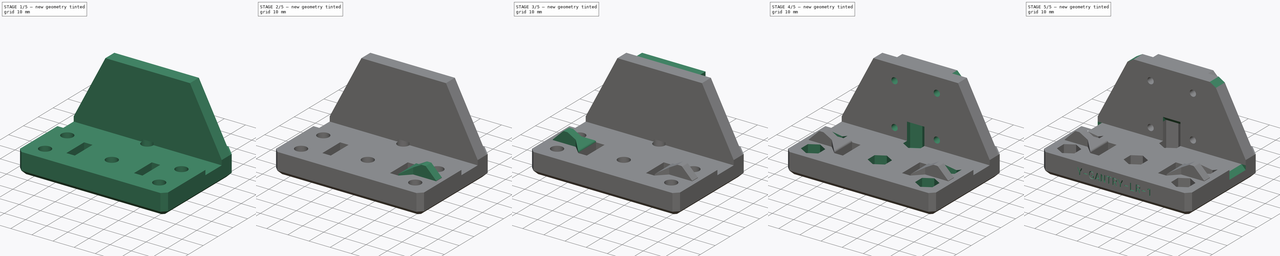
[diagram: build sequence overview — one tinted view per stage of 5, left to right]
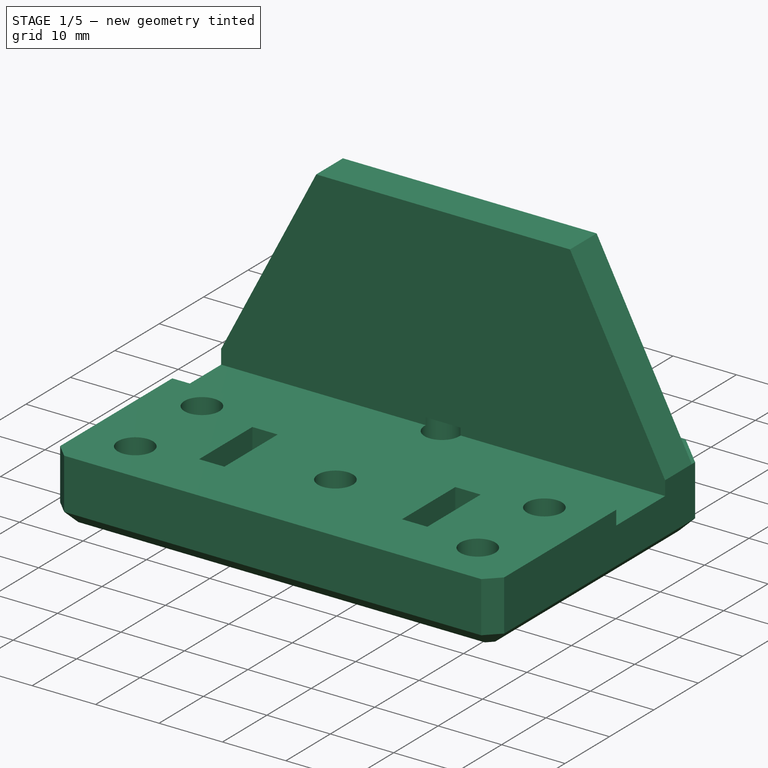
[diagram: stage 1 of 5 — iso view after this stage's code; geometry added in this stage tinted green]
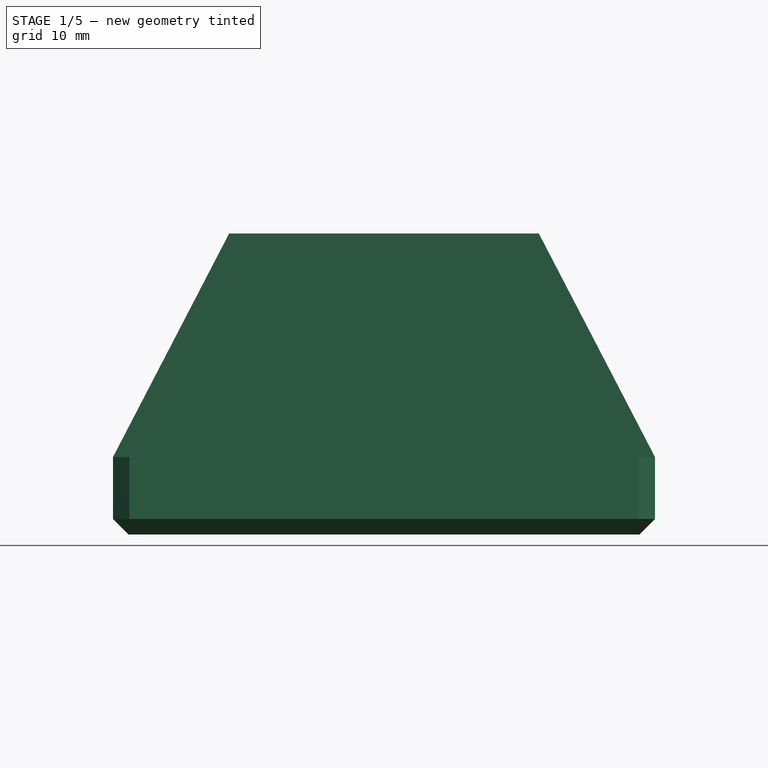
[diagram: stage 1 of 5 — front view after this stage's code; geometry added in this stage tinted green]
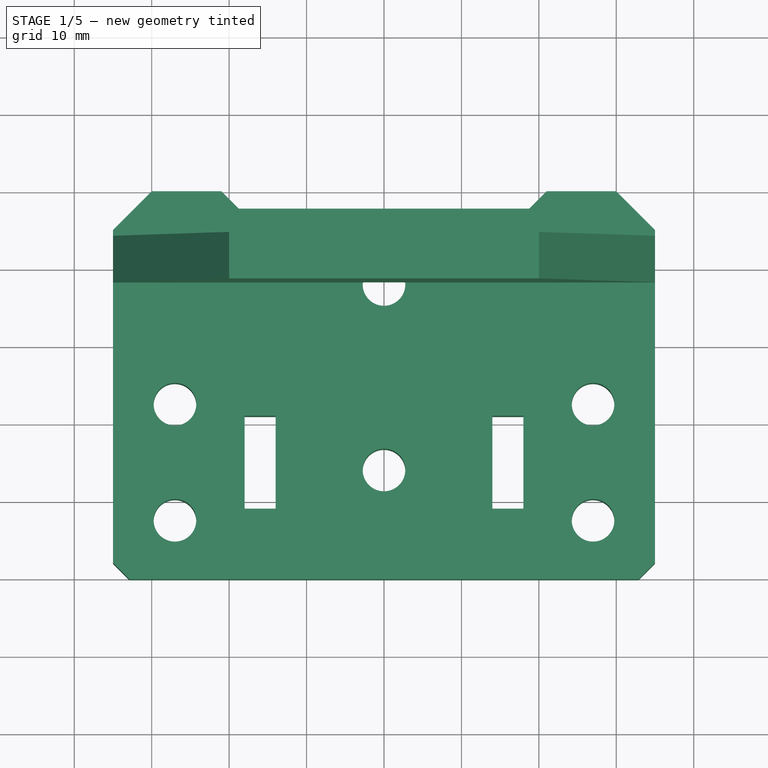
[diagram: stage 1 of 5 — top view after this stage's code; geometry added in this stage tinted green]
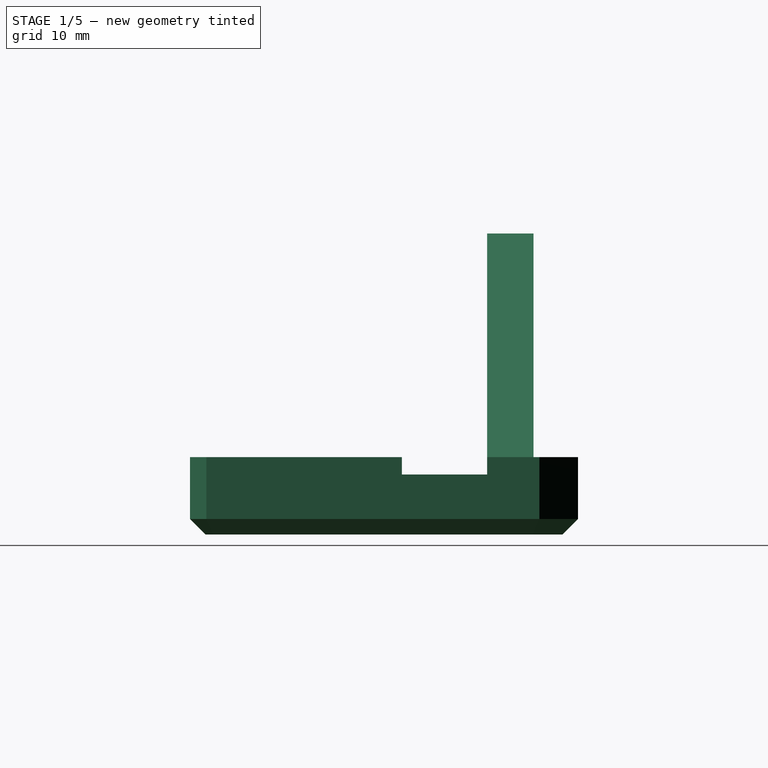
[diagram: stage 1 of 5 — right view after this stage's code; geometry added in this stage tinted green]
FCSTD DOCUMENT  (FreeCAD 0.20R29177 (Git))
Label: y-gantry
License: All rights reserved
LicenseURL: http://en.wikipedia.org/wiki/All_rights_reserved
objects: Sketcher::SketchObject×8, PartDesign::Chamfer×7, PartDesign::Plane×5, PartDesign::Pocket×5, PartDesign::Pad×4, PartDesign::Fillet×2, PartDesign::Mirrored×1, Part::Part2DObjectPython×1, PartDesign::Body×1
note: 52 computed .brp shape members not serialized (recipe doc carries the construction recipe); baked Part::Feature solids carry a one-line shape summary decoded from their .brp

FEATURE [Sketcher::SketchObject] Sketch
  FullyConstrained = true
  MapMode = 5
  Support = -> [XY_Plane]
  sketch-geometry (76):
    g0: LineSegment StartX=-35 StartY=-70 StartZ=0 EndX=35 EndY=-70 EndZ=0
    g1: LineSegment StartX=35 StartY=-70 StartZ=0 EndX=35 EndY=0 EndZ=0
    g2: LineSegment StartX=35 StartY=0 StartZ=0 EndX=-35 EndY=0 EndZ=0
    g3: LineSegment StartX=-35 StartY=0 StartZ=0 EndX=-35 EndY=-70 EndZ=0
    g4: LineSegment StartX=-18.75 StartY=-2.25 StartZ=0 EndX=18.75 EndY=-2.25 EndZ=0
    g5: LineSegment StartX=-18.75 StartY=-2.25 StartZ=0 EndX=-21 EndY=0 EndZ=0
    g6: LineSegment StartX=-21 StartY=0 StartZ=0 EndX=-30 EndY=0 EndZ=0
    g7: LineSegment StartX=-30 StartY=0 StartZ=0 EndX=-35 EndY=-5 EndZ=0
    g8: LineSegment StartX=18.75 StartY=-2.25 StartZ=0 EndX=21 EndY=0 EndZ=0
    g9: LineSegment StartX=21 StartY=0 StartZ=0 EndX=30 EndY=0 EndZ=0
    g10: LineSegment StartX=30 StartY=0 StartZ=0 EndX=35 EndY=-5 EndZ=0
    g11: LineSegment StartX=-35 StartY=-5 StartZ=0 EndX=-35 EndY=-48 EndZ=0
    g12: LineSegment StartX=-35 StartY=-48 StartZ=0 EndX=-32.8787 EndY=-50.1213 EndZ=0
    g13: LineSegment StartX=35 StartY=-5 StartZ=0 EndX=35 EndY=-48 EndZ=0
    g14: LineSegment StartX=35 StartY=-48 StartZ=0 EndX=32.8787 EndY=-50.1213 EndZ=0
    g15: Circle CenterX=0 CenterY=-36 CenterZ=0 NormalX=0 NormalY=0 NormalZ=1 AngleXU=0 Radius=2.75
    g16: Circle CenterX=0 CenterY=-12 CenterZ=0 NormalX=0 NormalY=0 NormalZ=1 AngleXU=0 Radius=2.75
    g17: Circle CenterX=-27 CenterY=-27.5 CenterZ=0 NormalX=0 NormalY=0 NormalZ=1 AngleXU=0 Radius=2.75
    g18: Circle CenterX=-27 CenterY=-42.5 CenterZ=0 NormalX=0 NormalY=0 NormalZ=1 AngleXU=0 Radius=2.75
    g19: LineSegment StartX=-18 StartY=-41 StartZ=0 EndX=-14 EndY=-41 EndZ=0
    g20: LineSegment StartX=-14 StartY=-41 StartZ=0 EndX=-14 EndY=-29 EndZ=0
    g21: LineSegment StartX=-14 StartY=-29 StartZ=0 EndX=-18 EndY=-29 EndZ=0
    g22: LineSegment StartX=-18 StartY=-29 StartZ=0 EndX=-18 EndY=-41 EndZ=0
    g23: LineSegment StartX=-18 StartY=-35 StartZ=0 EndX=-14 EndY=-35 EndZ=0
    g24: Circle CenterX=27 CenterY=-27.5 CenterZ=0 NormalX=0 NormalY=0 NormalZ=1 AngleXU=0 Radius=2.75
    g25: Circle CenterX=27 CenterY=-42.5 CenterZ=0 NormalX=0 NormalY=0 NormalZ=1 AngleXU=0 Radius=2.75
    g26: LineSegment StartX=18 StartY=-41 StartZ=0 EndX=14 EndY=-41 EndZ=0
    g27: LineSegment StartX=14 StartY=-41 StartZ=0 EndX=14 EndY=-29 EndZ=0
    g28: LineSegment StartX=14 StartY=-29 StartZ=0 EndX=18 EndY=-29 EndZ=0
    g29: LineSegment StartX=18 StartY=-29 StartZ=0 EndX=18 EndY=-41 EndZ=0
    g30: LineSegment StartX=18 StartY=-35 StartZ=0 EndX=14 EndY=-35 EndZ=0
    g31: Circle CenterX=-20 CenterY=-14.25 CenterZ=0 NormalX=0 NormalY=0 NormalZ=1 AngleXU=0 Radius=4.5
    g32: Circle CenterX=20 CenterY=-14.25 CenterZ=0 NormalX=0 NormalY=0 NormalZ=1 AngleXU=0 Radius=4.5
    g33: LineSegment StartX=-27 StartY=-47.059 StartZ=0 EndX=-23.0518 EndY=-44.7795 EndZ=0
    g34: LineSegment StartX=-23.0518 StartY=-44.7795 StartZ=0 EndX=-23.0518 EndY=-40.2205 EndZ=0
    g35: LineSegment StartX=-23.0518 StartY=-40.2205 StartZ=0 EndX=-27 EndY=-37.941 EndZ=0
    g36: LineSegment StartX=-27 StartY=-37.941 StartZ=0 EndX=-30.9482 EndY=-40.2205 EndZ=0
    g37: LineSegment StartX=-30.9482 StartY=-40.2205 StartZ=0 EndX=-30.9482 EndY=-44.7795 EndZ=0
    g38: LineSegment StartX=-30.9482 StartY=-44.7795 StartZ=0 EndX=-27 EndY=-47.059 EndZ=0
    g39: Circle CenterX=-27 CenterY=-42.5 CenterZ=0 NormalX=0 NormalY=0 NormalZ=1 AngleXU=0 Radius=4.55902
    g40: LineSegment StartX=-27 StartY=-32.059 StartZ=0 EndX=-23.0518 EndY=-29.7795 EndZ=0
    g41: LineSegment StartX=-23.0518 StartY=-29.7795 StartZ=0 EndX=-23.0518 EndY=-25.2205 EndZ=0
    g42: LineSegment StartX=-23.0518 StartY=-25.2205 StartZ=0 EndX=-27 EndY=-22.941 EndZ=0
    g43: LineSegment StartX=-27 StartY=-22.941 StartZ=0 EndX=-30.9482 EndY=-25.2205 EndZ=0
    g44: LineSegment StartX=-30.9482 StartY=-25.2205 StartZ=0 EndX=-30.9482 EndY=-29.7795 EndZ=0
    g45: LineSegment StartX=-30.9482 StartY=-29.7795 StartZ=0 EndX=-27 EndY=-32.059 EndZ=0
    g46: Circle CenterX=-27 CenterY=-27.5 CenterZ=0 NormalX=0 NormalY=0 NormalZ=1 AngleXU=0 Radius=4.55902
    g47: LineSegment StartX=0 StartY=-40.559 StartZ=0 EndX=3.94822 EndY=-38.2795 EndZ=0
    g48: LineSegment StartX=3.94822 StartY=-38.2795 StartZ=0 EndX=3.94822 EndY=-33.7205 EndZ=0
    g49: LineSegment StartX=3.94822 StartY=-33.7205 StartZ=0 EndX=4e-16 EndY=-31.441 EndZ=0
    g50: LineSegment StartX=4e-16 StartY=-31.441 StartZ=0 EndX=-3.94822 EndY=-33.7205 EndZ=0
    g51: LineSegment StartX=-3.94822 StartY=-33.7205 StartZ=0 EndX=-3.94822 EndY=-38.2795 EndZ=0
    g52: LineSegment StartX=-3.94822 StartY=-38.2795 StartZ=0 EndX=0 EndY=-40.559 EndZ=0
    g53: Circle CenterX=0 CenterY=-36 CenterZ=0 NormalX=0 NormalY=0 NormalZ=1 AngleXU=0 Radius=4.55902
    g54: LineSegment StartX=27 StartY=-47.059 StartZ=0 EndX=30.9482 EndY=-44.7795 EndZ=0
    g55: LineSegment StartX=30.9482 StartY=-44.7795 StartZ=0 EndX=30.9482 EndY=-40.2205 EndZ=0
    g56: LineSegment StartX=30.9482 StartY=-40.2205 StartZ=0 EndX=27 EndY=-37.941 EndZ=0
    g57: LineSegment StartX=27 StartY=-37.941 StartZ=0 EndX=23.0518 EndY=-40.2205 EndZ=0
    g58: LineSegment StartX=23.0518 StartY=-40.2205 StartZ=0 EndX=23.0518 EndY=-44.7795 EndZ=0
    g59: LineSegment StartX=23.0518 StartY=-44.7795 StartZ=0 EndX=27 EndY=-47.059 EndZ=0
    g60: Circle CenterX=27 CenterY=-42.5 CenterZ=0 NormalX=0 NormalY=0 NormalZ=1 AngleXU=0 Radius=4.55902
    g61: LineSegment StartX=27 StartY=-32.059 StartZ=0 EndX=30.9482 EndY=-29.7795 EndZ=0
    g62: LineSegment StartX=30.9482 StartY=-29.7795 StartZ=0 EndX=30.9482 EndY=-25.2205 EndZ=0
    g63: LineSegment StartX=30.9482 StartY=-25.2205 StartZ=0 EndX=27 EndY=-22.941 EndZ=0
    g64: LineSegment StartX=27 StartY=-22.941 StartZ=0 EndX=23.0518 EndY=-25.2205 EndZ=0
    g65: LineSegment StartX=23.0518 StartY=-25.2205 StartZ=0 EndX=23.0518 EndY=-29.7795 EndZ=0
    g66: LineSegment StartX=23.0518 StartY=-29.7795 StartZ=0 EndX=27 EndY=-32.059 EndZ=0
    g67: Circle CenterX=27 CenterY=-27.5 CenterZ=0 NormalX=0 NormalY=0 NormalZ=1 AngleXU=0 Radius=4.55902
    g68: LineSegment StartX=0 StartY=-16.559 StartZ=0 EndX=3.94822 EndY=-14.2795 EndZ=0
    g69: LineSegment StartX=3.94822 StartY=-14.2795 StartZ=0 EndX=3.94822 EndY=-9.72049 EndZ=0
    g70: LineSegment StartX=3.94822 StartY=-9.72049 StartZ=0 EndX=0 EndY=-7.44098 EndZ=0
    g71: LineSegment StartX=0 StartY=-7.44098 StartZ=0 EndX=-3.94822 EndY=-9.72049 EndZ=0
    g72: LineSegment StartX=-3.94822 StartY=-9.72049 StartZ=0 EndX=-3.94822 EndY=-14.2795 EndZ=0
    g73: LineSegment StartX=-3.94822 StartY=-14.2795 StartZ=0 EndX=0 EndY=-16.559 EndZ=0
    g74: Circle CenterX=0 CenterY=-12 CenterZ=0 NormalX=0 NormalY=0 NormalZ=1 AngleXU=0 Radius=4.55902
    g75: LineSegment StartX=-32.8787 StartY=-50.1213 StartZ=0 EndX=32.8787 EndY=-50.1213 EndZ=0
  constraints (188):
    c: Coincident(g0,g1)
    c: Coincident(g1,g2)
    c: Coincident(g2,g3)
    c: Coincident(g3,g0)
    c: Horizontal(g0)
    c: Vertical(g1)
    c: Vertical(g3)
    c: Symmetric(g2,g1,g-2)
    c: PointOnObject(g2,g-1)
    c: DistanceX(g2,g2) = 70
    c: DistanceY(g3,g3) = 70
    c: Symmetric(g4,g4,g-2)
    c: DistanceX(g4,g4) = 37.5
    c: Coincident(g5,g4)
    c: PointOnObject(g5,g2)
    c: Coincident(g6,g5)
    c: PointOnObject(g6,g2)
    c: Coincident(g7,g6)
    c: PointOnObject(g7,g3)
    c: Angle(g4,g5) = 2.35619
    c: DistanceY(g5,g5) = 2.25
    c: Angle(g7,g-1) = 2.35619
    c: DistanceX(g6,g6) = 9
    c: PointOnObject(g8,g-1)
    c: Coincident(g9,g8)
    c: PointOnObject(g9,g2)
    c: Coincident(g10,g9)
    c: PointOnObject(g10,g1)
    c: Equal(g9,g6)
    c: Equal(g10,g7)
    c: Equal(g8,g5)
    c: Coincident(g8,g4)
    c: Coincident(g11,g7)
    c: PointOnObject(g11,g3)
    c: Coincident(g12,g11)
    c: Coincident(g13,g10)
    c: PointOnObject(g13,g1)
    c: Coincident(g14,g13)
    c: Horizontal(g11,g13)
    c: Symmetric(g12,g14,g-2)
    c: Angle(g12,g3) = 2.35619
    c: DistanceY(g11,g11) = 43
    c: Distance(g12) = 3
    c: PointOnObject(g15,g-2)
    c: PointOnObject(g16,g-2)
    c: Coincident(g19,g20)
    c: Coincident(g20,g21)
    c: Coincident(g21,g22)
    c: Coincident(g22,g19)
    c: Horizontal(g19)
    c: Horizontal(g21)
    c: Vertical(g20)
    c: Vertical(g22)
    c: Diameter(g18) = 5.5
    c: Equal(g18,g15)
    c: Equal(g15,g17)
    c: Equal(g17,g16)
    c: DistanceY(g15,g16) = 24
    c: DistanceY(g16,g4) = 9.75
    c: Vertical(g17,g18)
    c: PointOnObject(g23,g20)
    c: Symmetric(g22,g22,g23)
    c: Symmetric(g17,g18,g23)
    c: DistanceY(g20,g20) = 12
    c: DistanceX(g19,g19) = 4
    c: DistanceX(g11,g18) = 8
    c: DistanceY(g18,g17) = 15
    c: DistanceX(g23,g15) = 14
    c: Coincident(g26,g27)
    c: Coincident(g27,g28)
    c: Coincident(g28,g29)
    c: Coincident(g29,g26)
    c: Horizontal(g26)
    c: Vertical(g27)
    c: Vertical(g29)
    c: Diameter(g25) = 5.5
    c: PointOnObject(g30,g27)
    c: Symmetric(g29,g29,g30)
    c: Symmetric(g24,g25,g30)
    c: Symmetric(g27,g20,g-2)
    c: Symmetric(g28,g21,g-2)
    c: Vertical(g25,g24)
    c: Horizontal(g25,g18)
    c: Symmetric(g24,g17,g-2)
    c: Equal(g31,g32)
    c: Diameter(g31) = 9
    c: Coincident(g33,g34)
    c: Coincident(g34,g35)
    c: Coincident(g35,g36)
    c: Coincident(g36,g37)
    c: Coincident(g37,g38)
    c: Coincident(g38,g33)
    c: Equal(g33, g34-g38) x5
    c: PointOnObject(g33,g39)
    c: PointOnObject(g34,g39)
    c: PointOnObject(g35,g39)
    c: PointOnObject(g36,g39)
    c: PointOnObject(g37,g39)
    c: PointOnObject(g38,g39)
    c: Coincident(g39,g18)
    c: Coincident(g40,g41)
    c: Coincident(g41,g42)
    c: Coincident(g42,g43)
    c: Coincident(g43,g44)
    c: Coincident(g44,g45)
    c: Coincident(g45,g40)
    c: Equal(g40, g41-g45) x5
    c: PointOnObject(g40,g46)
    c: PointOnObject(g41,g46)
    c: PointOnObject(g42,g46)
    c: PointOnObject(g43,g46)
    c: PointOnObject(g44,g46)
    c: PointOnObject(g45,g46)
    c: Coincident(g46,g17)
    c: Coincident(g47,g48)
    c: Coincident(g48,g49)
    c: Coincident(g49,g50)
    c: Coincident(g50,g51)
    c: Coincident(g51,g52)
    c: Coincident(g52,g47)
    c: Equal(g47, g48-g52) x5
    c: PointOnObject(g47,g53)
    c: PointOnObject(g48,g53)
    c: PointOnObject(g49,g53)
    c: PointOnObject(g50,g53)
    c: PointOnObject(g51,g53)
    c: PointOnObject(g52,g53)
    c: Coincident(g53,g15)
    c: PointOnObject(g52,g-2)
    c: Coincident(g54,g55)
    c: Coincident(g55,g56)
    c: Coincident(g56,g57)
    c: Coincident(g57,g58)
    c: Coincident(g58,g59)
    c: Coincident(g59,g54)
    c: Equal(g54, g55-g59) x5
    c: PointOnObject(g54,g60)
    c: PointOnObject(g55,g60)
    c: PointOnObject(g56,g60)
    c: PointOnObject(g57,g60)
    c: PointOnObject(g58,g60)
    c: PointOnObject(g59,g60)
    c: Coincident(g60,g25)
    c: Coincident(g61,g62)
    c: Coincident(g62,g63)
    c: Coincident(g63,g64)
    c: Coincident(g64,g65)
    c: Coincident(g65,g66)
    c: Coincident(g66,g61)
    c: Equal(g61, g62-g66) x5
    c: PointOnObject(g61,g67)
    c: PointOnObject(g62,g67)
    c: PointOnObject(g63,g67)
    c: PointOnObject(g64,g67)
    c: PointOnObject(g65,g67)
    c: PointOnObject(g66,g67)
    c: Coincident(g67,g24)
    c: Coincident(g68,g69)
    c: Coincident(g69,g70)
    c: Coincident(g70,g71)
    c: Coincident(g71,g72)
    c: Coincident(g72,g73)
    c: Coincident(g73,g68)
    c: Equal(g68, g69-g73) x5
    c: PointOnObject(g68,g74)
    c: PointOnObject(g69,g74)
    c: PointOnObject(g70,g74)
    c: PointOnObject(g71,g74)
    c: PointOnObject(g72,g74)
    c: PointOnObject(g73,g74)
    c: Coincident(g74,g16)
    c: PointOnObject(g73,g-2)
    c: Equal(g46,g74)
    c: Equal(g74,g53)
    c: Equal(g53,g39)
    c: Equal(g39,g60)
    c: Equal(g60,g67)
    c: Vertical(g37)
    c: Vertical(g44)
    c: Vertical(g58)
    c: Vertical(g65)
    c: Block(g39)
    c: Coincident(g75,g12)
    c: Coincident(g75,g14)
    c: DistanceX(g31,g32) = 40
    c: DistanceY(g21,g31) = 14.75
    c: Symmetric(g31,g32,g-2)
    c: Equal(g24,g17)
FEATURE [PartDesign::Pad] Pad  label="Initial XY Profile"
  Direction = (0,0,1)
  Length = 10
  Length2 = 100
  Profile = -> Sketch
  Type = 0
FEATURE [PartDesign::Plane] DatumPlane  label="Backside Face Datum"
  Length = 60
  MapMode = 5
  Placement = pos=(0,0,10) rot=(0,0,1;0rad)
  ResizeMode = 0
  Support = -> [Pad]
  Width = 60
FEATURE [Sketcher::SketchObject] Sketch002
  FullyConstrained = false
  MapMode = 5
  Placement = pos=(0,0,10) rot=(0,0,1;0rad)
  Support = -> [DatumPlane]
  sketch-geometry (57):
    g0: LineSegment StartX=-35 StartY=-70 StartZ=0 EndX=35 EndY=-70 EndZ=0
    g1: LineSegment StartX=35 StartY=-70 StartZ=0 EndX=35 EndY=0 EndZ=0
    g2: LineSegment StartX=35 StartY=0 StartZ=0 EndX=-35 EndY=0 EndZ=0
    g3: LineSegment StartX=-35 StartY=0 StartZ=0 EndX=-35 EndY=-70 EndZ=0
    g4: LineSegment StartX=-21 StartY=0 StartZ=0 EndX=-30 EndY=0 EndZ=0
    g5: LineSegment StartX=21 StartY=0 StartZ=0 EndX=30 EndY=0 EndZ=0
    g6: LineSegment StartX=-35 StartY=-5 StartZ=0 EndX=-35 EndY=-48 EndZ=0
    g7: LineSegment StartX=35 StartY=-5 StartZ=0 EndX=35 EndY=-48 EndZ=0
    g8: LineSegment StartX=10 StartY=-70 StartZ=0 EndX=-10 EndY=-70 EndZ=0
    g9: Circle CenterX=0 CenterY=-36 CenterZ=0 NormalX=0 NormalY=0 NormalZ=1 AngleXU=0 Radius=2.75
    g10: Circle CenterX=0 CenterY=-12 CenterZ=0 NormalX=0 NormalY=0 NormalZ=1 AngleXU=0 Radius=2.75
    g11: Circle CenterX=-27 CenterY=-27.5 CenterZ=0 NormalX=0 NormalY=0 NormalZ=1 AngleXU=0 Radius=2.75
    g12: Circle CenterX=-27 CenterY=-42.5 CenterZ=0 NormalX=0 NormalY=0 NormalZ=1 AngleXU=0 Radius=2.75
    g13: Circle CenterX=27 CenterY=-27.5 CenterZ=0 NormalX=0 NormalY=0 NormalZ=1 AngleXU=0 Radius=2.75
    g14: Circle CenterX=27 CenterY=-42.5 CenterZ=0 NormalX=0 NormalY=0 NormalZ=1 AngleXU=0 Radius=2.75
    g15: LineSegment StartX=-27 StartY=-47.25 StartZ=0 EndX=-22.8864 EndY=-44.875 EndZ=0
    g16: LineSegment StartX=-22.8864 StartY=-44.875 StartZ=0 EndX=-22.8864 EndY=-40.125 EndZ=0
    g17: LineSegment StartX=-22.8864 StartY=-40.125 StartZ=0 EndX=-27 EndY=-37.75 EndZ=0
    g18: LineSegment StartX=-27 StartY=-37.75 StartZ=0 EndX=-31.1136 EndY=-40.125 EndZ=0
    g19: LineSegment StartX=-31.1136 StartY=-40.125 StartZ=0 EndX=-31.1136 EndY=-44.875 EndZ=0
    g20: LineSegment StartX=-31.1136 StartY=-44.875 StartZ=0 EndX=-27 EndY=-47.25 EndZ=0
    g21: Circle CenterX=-27 CenterY=-42.5 CenterZ=0 NormalX=0 NormalY=0 NormalZ=1 AngleXU=0 Radius=4.75
    g22: LineSegment StartX=-27 StartY=-32.25 StartZ=0 EndX=-22.8864 EndY=-29.875 EndZ=0
    g23: LineSegment StartX=-22.8864 StartY=-29.875 StartZ=0 EndX=-22.8864 EndY=-25.125 EndZ=0
    g24: LineSegment StartX=-22.8864 StartY=-25.125 StartZ=0 EndX=-27 EndY=-22.75 EndZ=0
    g25: LineSegment StartX=-27 StartY=-22.75 StartZ=0 EndX=-31.1136 EndY=-25.125 EndZ=0
    g26: LineSegment StartX=-31.1136 StartY=-25.125 StartZ=0 EndX=-31.1136 EndY=-29.875 EndZ=0
    g27: LineSegment StartX=-31.1136 StartY=-29.875 StartZ=0 EndX=-27 EndY=-32.25 EndZ=0
    g28: Circle CenterX=-27 CenterY=-27.5 CenterZ=0 NormalX=0 NormalY=0 NormalZ=1 AngleXU=0 Radius=4.75
    g29: LineSegment StartX=0 StartY=-40.75 StartZ=0 EndX=4.11362 EndY=-38.375 EndZ=0
    g30: LineSegment StartX=4.11362 StartY=-38.375 StartZ=0 EndX=4.11362 EndY=-33.625 EndZ=0
    g31: LineSegment StartX=4.11362 StartY=-33.625 StartZ=0 EndX=0 EndY=-31.25 EndZ=0
    g32: LineSegment StartX=0 StartY=-31.25 StartZ=0 EndX=-4.11362 EndY=-33.625 EndZ=0
    g33: LineSegment StartX=-4.11362 StartY=-33.625 StartZ=0 EndX=-4.11362 EndY=-38.375 EndZ=0
    g34: LineSegment StartX=-4.11362 StartY=-38.375 StartZ=0 EndX=0 EndY=-40.75 EndZ=0
    g35: Circle CenterX=0 CenterY=-36 CenterZ=0 NormalX=0 NormalY=0 NormalZ=1 AngleXU=0 Radius=4.75
    g36: LineSegment StartX=27 StartY=-47.25 StartZ=0 EndX=31.1136 EndY=-44.875 EndZ=0
    g37: LineSegment StartX=31.1136 StartY=-44.875 StartZ=0 EndX=31.1136 EndY=-40.125 EndZ=0
    g38: LineSegment StartX=31.1136 StartY=-40.125 StartZ=0 EndX=27 EndY=-37.75 EndZ=0
    g39: LineSegment StartX=27 StartY=-37.75 StartZ=0 EndX=22.8864 EndY=-40.125 EndZ=0
    g40: LineSegment StartX=22.8864 StartY=-40.125 StartZ=0 EndX=22.8864 EndY=-44.875 EndZ=0
    g41: LineSegment StartX=22.8864 StartY=-44.875 StartZ=0 EndX=27 EndY=-47.25 EndZ=0
    g42: Circle CenterX=27 CenterY=-42.5 CenterZ=0 NormalX=0 NormalY=0 NormalZ=1 AngleXU=0 Radius=4.75
    g43: LineSegment StartX=27 StartY=-32.25 StartZ=0 EndX=31.1136 EndY=-29.875 EndZ=0
    g44: LineSegment StartX=31.1136 StartY=-29.875 StartZ=0 EndX=31.1136 EndY=-25.125 EndZ=0
    g45: LineSegment StartX=31.1136 StartY=-25.125 StartZ=0 EndX=27 EndY=-22.75 EndZ=0
    g46: LineSegment StartX=27 StartY=-22.75 StartZ=0 EndX=22.8864 EndY=-25.125 EndZ=0
    g47: LineSegment StartX=22.8864 StartY=-25.125 StartZ=0 EndX=22.8864 EndY=-29.875 EndZ=0
    g48: LineSegment StartX=22.8864 StartY=-29.875 StartZ=0 EndX=27 EndY=-32.25 EndZ=0
    g49: Circle CenterX=27 CenterY=-27.5 CenterZ=0 NormalX=0 NormalY=0 NormalZ=1 AngleXU=0 Radius=4.75
    g50: LineSegment StartX=0 StartY=-16.75 StartZ=0 EndX=4.11362 EndY=-14.375 EndZ=0
    g51: LineSegment StartX=4.11362 StartY=-14.375 StartZ=0 EndX=4.11362 EndY=-9.625 EndZ=0
    g52: LineSegment StartX=4.11362 StartY=-9.625 StartZ=0 EndX=0 EndY=-7.25 EndZ=0
    g53: LineSegment StartX=0 StartY=-7.25 StartZ=0 EndX=-4.11362 EndY=-9.625 EndZ=0
    g54: LineSegment StartX=-4.11362 StartY=-9.625 StartZ=0 EndX=-4.11362 EndY=-14.375 EndZ=0
    g55: LineSegment StartX=-4.11362 StartY=-14.375 StartZ=0 EndX=0 EndY=-16.75 EndZ=0
    g56: Circle CenterX=0 CenterY=-12 CenterZ=0 NormalX=0 NormalY=0 NormalZ=1 AngleXU=0 Radius=4.75
  constraints (138):
    c: Coincident(g0,g1)
    c: Coincident(g1,g2)
    c: Coincident(g2,g3)
    c: Coincident(g3,g0)
    c: Horizontal(g0)
    c: Vertical(g1)
    c: Vertical(g3)
    c: Symmetric(g2,g1,g-2)
    c: PointOnObject(g2,g-1)
    c: DistanceX(g2,g2) = 70
    c: DistanceY(g3,g3) = 70
    c: PointOnObject(g4,g2)
    c: PointOnObject(g4,g2)
    c: PointOnObject(g6,g3)
    c: PointOnObject(g5,g-1)
    c: PointOnObject(g5,g2)
    c: PointOnObject(g7,g1)
    c: Equal(g5,g4)
    c: PointOnObject(g6,g3)
    c: PointOnObject(g7,g1)
    c: Horizontal(g6,g7)
    c: DistanceY(g6,g6) = 43
    c: PointOnObject(g8,g0)
    c: Symmetric(g8,g8,g-2)
    c: DistanceX(g8,g8) = 20
    c: PointOnObject(g9,g-2)
    c: PointOnObject(g10,g-2)
    c: Diameter(g12) = 5.5
    c: Equal(g12,g9)
    c: Equal(g9,g11)
    c: Equal(g11,g10)
    c: DistanceY(g9,g10) = 24
    c: Vertical(g11,g12)
    c: DistanceX(g6,g12) = 8
    c: DistanceY(g12,g11) = 15
    c: DistanceY(g8,g12) = 27.5
    c: Diameter(g14) = 5.5
    c: Vertical(g14,g13)
    c: Horizontal(g14,g12)
    c: Symmetric(g13,g11,g-2)
    c: Coincident(g15,g16)
    c: Coincident(g16,g17)
    c: Coincident(g17,g18)
    c: Coincident(g18,g19)
    c: Coincident(g19,g20)
    c: Coincident(g20,g15)
    c: Equal(g15, g16-g20) x5
    c: PointOnObject(g15,g21)
    c: PointOnObject(g16,g21)
    c: PointOnObject(g17,g21)
    c: PointOnObject(g18,g21)
    c: PointOnObject(g19,g21)
    c: PointOnObject(g20,g21)
    c: Coincident(g21,g12)
    c: Coincident(g22,g23)
    c: Coincident(g23,g24)
    c: Coincident(g24,g25)
    c: Coincident(g25,g26)
    c: Coincident(g26,g27)
    c: Coincident(g27,g22)
    c: Equal(g22, g23-g27) x5
    c: PointOnObject(g22,g28)
    c: PointOnObject(g23,g28)
    c: PointOnObject(g24,g28)
    c: PointOnObject(g25,g28)
    c: PointOnObject(g26,g28)
    c: PointOnObject(g27,g28)
    c: Coincident(g28,g11)
    c: Coincident(g29,g30)
    c: Coincident(g30,g31)
    c: Coincident(g31,g32)
    c: Coincident(g32,g33)
    c: Coincident(g33,g34)
    c: Coincident(g34,g29)
    c: Equal(g29, g30-g34) x5
    c: PointOnObject(g29,g35)
    c: PointOnObject(g30,g35)
    c: PointOnObject(g31,g35)
    c: PointOnObject(g32,g35)
    c: PointOnObject(g33,g35)
    c: PointOnObject(g34,g35)
    c: Coincident(g35,g9)
    c: PointOnObject(g34,g-2)
    c: Coincident(g36,g37)
    c: Coincident(g37,g38)
    c: Coincident(g38,g39)
    c: Coincident(g39,g40)
    c: Coincident(g40,g41)
    c: Coincident(g41,g36)
    c: Equal(g36, g37-g41) x5
    c: PointOnObject(g36,g42)
    c: PointOnObject(g37,g42)
    c: PointOnObject(g38,g42)
    c: PointOnObject(g39,g42)
    c: PointOnObject(g40,g42)
    c: PointOnObject(g41,g42)
    c: Coincident(g42,g14)
    c: Coincident(g43,g44)
    c: Coincident(g44,g45)
    c: Coincident(g45,g46)
    c: Coincident(g46,g47)
    c: Coincident(g47,g48)
    c: Coincident(g48,g43)
    c: Equal(g43, g44-g48) x5
    c: PointOnObject(g43,g49)
    c: PointOnObject(g44,g49)
    c: PointOnObject(g45,g49)
    c: PointOnObject(g46,g49)
    c: PointOnObject(g47,g49)
    c: PointOnObject(g48,g49)
    c: Coincident(g49,g13)
    c: Coincident(g50,g51)
    c: Coincident(g51,g52)
    c: Coincident(g52,g53)
    c: Coincident(g53,g54)
    c: Coincident(g54,g55)
    c: Coincident(g55,g50)
    c: Equal(g50, g51-g55) x5
    c: PointOnObject(g50,g56)
    c: PointOnObject(g51,g56)
    c: PointOnObject(g52,g56)
    c: PointOnObject(g53,g56)
    c: PointOnObject(g54,g56)
    c: PointOnObject(g55,g56)
    c: Coincident(g56,g10)
    c: PointOnObject(g55,g-2)
    c: Equal(g28,g56)
    c: Equal(g56,g35)
    c: Equal(g35,g21)
    c: Equal(g21,g42)
    c: Equal(g42,g49)
    c: Vertical(g19)
    c: Vertical(g26)
    c: Vertical(g40)
    c: Vertical(g47)
    c: Equal(g14,g13)
    c: DistanceY(g10,g-1) = 12
    c: Diameter(g21) = 9.5
FEATURE [Sketcher::SketchObject] Sketch007
  FullyConstrained = false
  MapMode = 5
  Placement = pos=(0,0,10) rot=(0,0,1;0rad)
  Support = -> [DatumPlane]
  sketch-geometry (8):
    g0: LineSegment StartX=18 StartY=-35 StartZ=0 EndX=33 EndY=-35 EndZ=0
    g1: LineSegment StartX=17.9996 StartY=-29.0003 StartZ=0 EndX=22.0993 EndY=-33.1 EndZ=0
    g2: LineSegment StartX=18 StartY=-41 StartZ=0 EndX=22.0993 EndY=-36.9 EndZ=0
    g3: LineSegment StartX=18 StartY=-41 StartZ=0 EndX=17.9996 EndY=-29.0003 EndZ=0
    g4: LineSegment StartX=22.0993 StartY=-36.9 StartZ=0 EndX=33 EndY=-36.9 EndZ=0
    g5: LineSegment StartX=33 StartY=-36.9 StartZ=0 EndX=33 EndY=-33.1 EndZ=0
    g6: LineSegment StartX=33 StartY=-33.1 StartZ=0 EndX=22.0993 EndY=-33.1 EndZ=0
    g7: LineSegment StartX=22.0993 StartY=-33.1 StartZ=0 EndX=22.0993 EndY=-36.9 EndZ=0
  constraints (18):
    c: Horizontal(g0)
    c: Symmetric(g1,g2,g0)
    c: Coincident(g3,g2)
    c: Coincident(g3,g1)
    c: Coincident(g4,g5)
    c: Coincident(g5,g6)
    c: Coincident(g6,g7)
    c: Coincident(g7,g4)
    c: Horizontal(g4)
    c: Horizontal(g6)
    c: Vertical(g5)
    c: Coincident(g4,g2)
    c: Coincident(g1,g6)
    c: Angle(g6,g1) = 2.35619
    c: DistanceY(g5,g5) = 3.8
    c: PointOnObject(g0,g5)
    c: DistanceX(g0,g0) = 15
    c: DistanceY(g0,g-1) = 35
FEATURE [PartDesign::Chamfer] Chamfer004  label="Eliminate Elephant Foot Chamfer"
  Angle = 45
  Base = -> Pad [Edge15,Edge12,Edge9,Edge6,Edge3,Edge35,Edge33,Edge30,Edge27,Edge24,Edge21,Edge18]
  BaseFeature = -> Pad
  ChamferType = 0
  FlipDirection = false
  Size = 2
  Size2 = 1
  SupportTransform = false
  UseAllEdges = false
FEATURE [PartDesign::Plane] DatumPlane002  label="PrintPlane"
  Length = 60
  MapMode = 5
  Placement = pos=(0,0,0) rot=(1,0,0;3.14159rad)
  ResizeMode = 0
  Support = -> [Pad]
  Width = 60
FEATURE [Sketcher::SketchObject] Sketch008
  FullyConstrained = true
  MapMode = 5
  Placement = pos=(0,0,10) rot=(0,0,1;0rad)
  Support = -> [DatumPlane]
  sketch-geometry (4):
    g0: LineSegment StartX=-35 StartY=-22.75 StartZ=0 EndX=35 EndY=-22.75 EndZ=0
    g1: LineSegment StartX=35 StartY=-22.75 StartZ=0 EndX=35 EndY=-11.75 EndZ=0
    g2: LineSegment StartX=35 StartY=-11.75 StartZ=0 EndX=-35 EndY=-11.75 EndZ=0
    g3: LineSegment StartX=-35 StartY=-11.75 StartZ=0 EndX=-35 EndY=-22.75 EndZ=0
  constraints (11):
    c: Coincident(g0,g1)
    c: Coincident(g1,g2)
    c: Coincident(g2,g3)
    c: Coincident(g3,g0)
    c: Horizontal(g2)
    c: Vertical(g1)
    c: Vertical(g3)
    c: Symmetric(g0,g0,g-2)
    c: DistanceX(g0,g0) = 70
    c: DistanceY(g3,g3) = 11
    c: DistanceY(g2,g-1) = 11.75
FEATURE [PartDesign::Pocket] Pocket001  label="Rail carriage cutout"
  BaseFeature = -> Chamfer004
  Direction = (0,0,-1)
  Length = 2.25
  Length2 = 5
  Profile = -> Sketch008
  ReferenceAxis = -> Sketch008 [N_Axis]
  Type = 0
FEATURE [PartDesign::Plane] DatumPlane003  label="Rail carriage mount plane"
  Length = 60
  MapMode = 45
  Placement = pos=(1.6e-15,-11.75,8.875) rot=(0.57735,0.57735,0.57735;4.18879rad)
  ResizeMode = 0
  Support = -> [Pocket001]
  Width = 60
FEATURE [Sketcher::SketchObject] Sketch009
  FullyConstrained = true
  MapMode = 5
  Placement = pos=(1.6e-15,-11.75,8.875) rot=(0.57735,0.57735,0.57735;4.18879rad)
  Support = -> [DatumPlane003]
  sketch-geometry (6):
    g0: LineSegment StartX=30 StartY=20 StartZ=0 EndX=30 EndY=-20 EndZ=0
    g1: LineSegment StartX=0 StartY=-35 StartZ=0 EndX=0 EndY=35 EndZ=0
    g2: LineSegment StartX=30 StartY=20 StartZ=0 EndX=1.125 EndY=35 EndZ=0
    g3: LineSegment StartX=1.125 StartY=-35 StartZ=0 EndX=30 EndY=-20 EndZ=0
    g4: LineSegment StartX=1.125 StartY=35 StartZ=0 EndX=0 EndY=35 EndZ=0
    g5: LineSegment StartX=1.125 StartY=-35 StartZ=0 EndX=0 EndY=-35 EndZ=0
  constraints (17):
    c: Vertical(g0)
    c: PointOnObject(g1,g-2)
    c: Symmetric(g1,g1,g-1)
    c: DistanceY(g1,g1) = 70
    c: Symmetric(g3,g2,g-1)
    c: Coincident(g0,g2)
    c: PointOnObject(g0,g3)
    c: DistanceY(g0,g0) = 40
    c: DistanceX(g1,g0) = 30
    c: Coincident(g4,g2)
    c: Coincident(g4,g1)
    c: Horizontal(g4)
    c: Coincident(g5,g3)
    c: Horizontal(g5)
    c: Coincident(g5,g1)
    c: Equal(g5,g4)
    c: DistanceX(g4,g4) = 1.125
FEATURE [PartDesign::Pad] Pad003  label="Carriage shelf"
  BaseFeature = -> Pocket001
  Direction = (0,1,0)
  Length = 6
  Length2 = 10
  Profile = -> Sketch009
  ReferenceAxis = -> Sketch009 [N_Axis]
  Type = 0
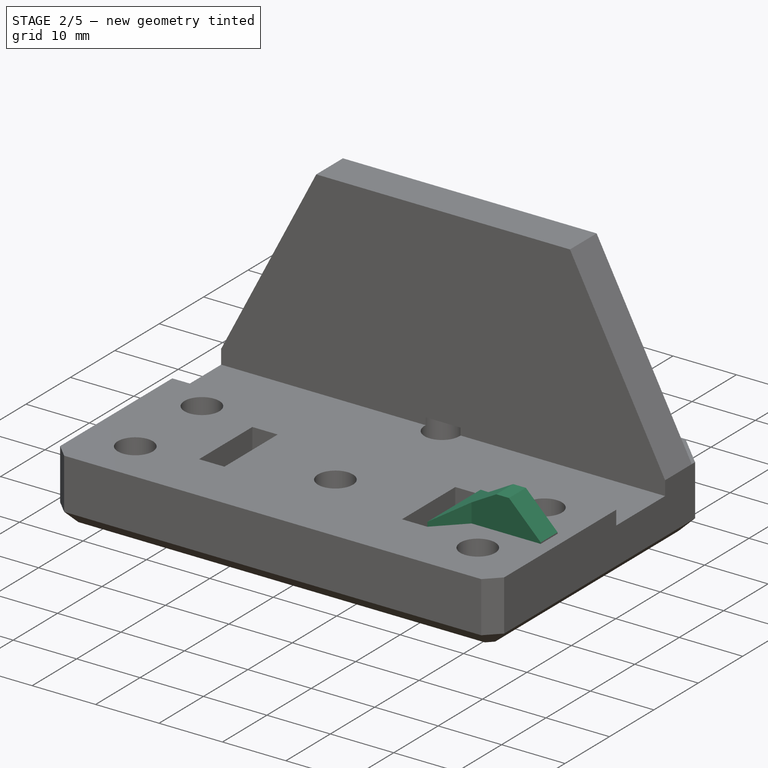
[diagram: stage 2 of 5 — iso view after this stage's code; geometry added in this stage tinted green]
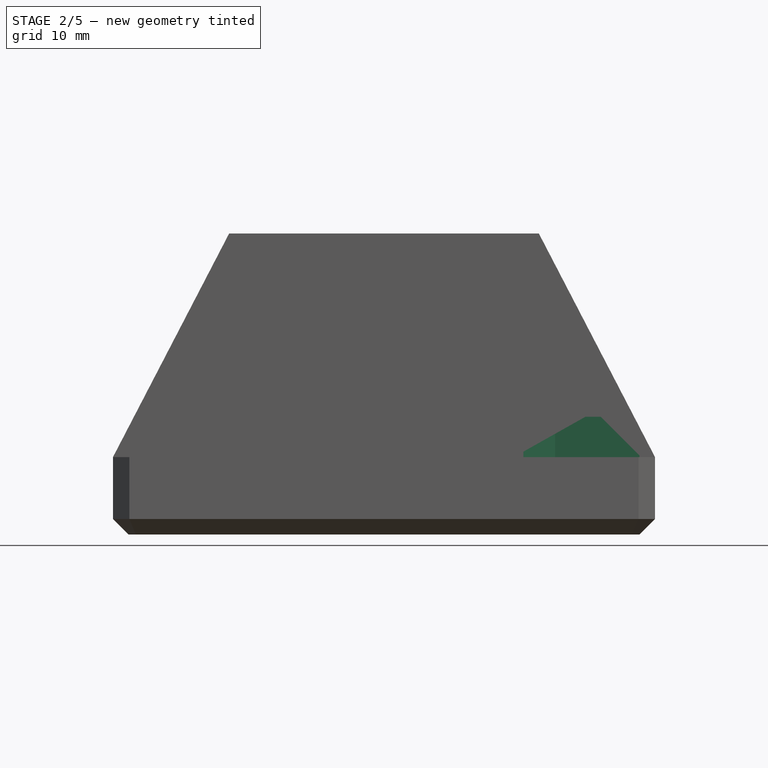
[diagram: stage 2 of 5 — front view after this stage's code; geometry added in this stage tinted green]
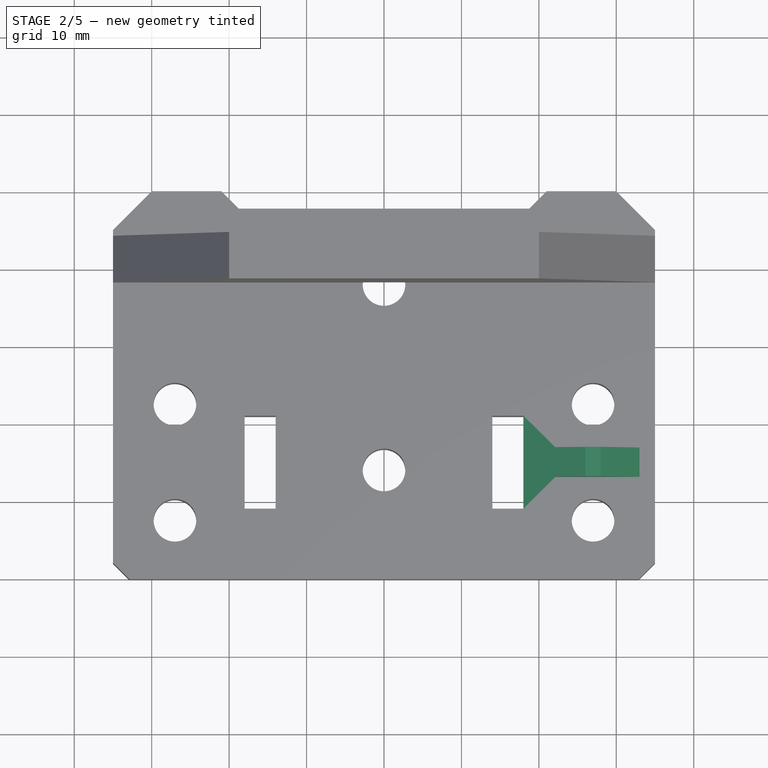
[diagram: stage 2 of 5 — top view after this stage's code; geometry added in this stage tinted green]
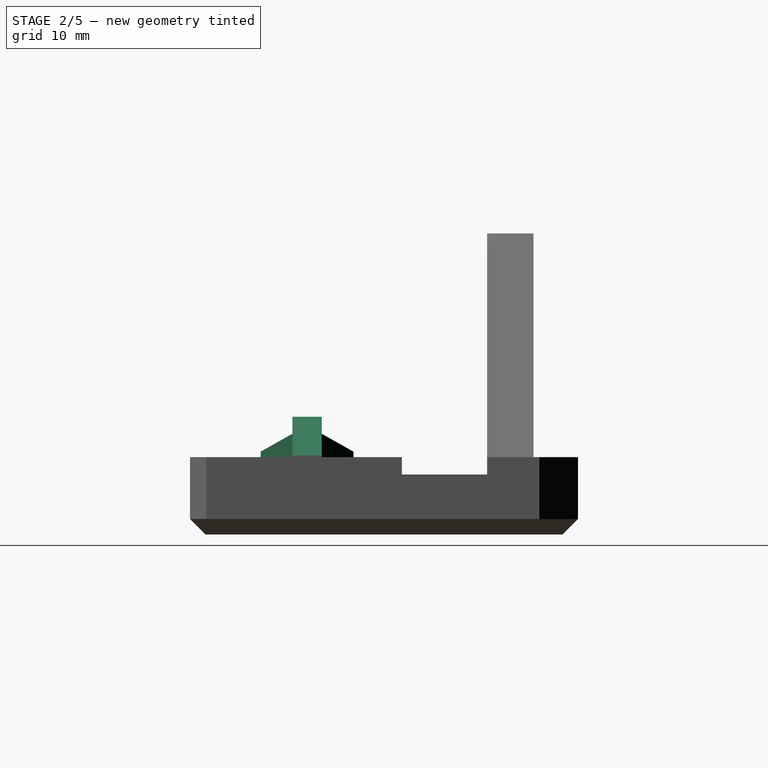
[diagram: stage 2 of 5 — right view after this stage's code; geometry added in this stage tinted green]
FEATURE [PartDesign::Fillet] Fillet001  label="Belt standoff routing fillet"
  Base = -> Pad003 [Edge38,Edge42]
  BaseFeature = -> Pad003
  Radius = 3.5
  SupportTransform = false
  UseAllEdges = false
FEATURE [PartDesign::Pad] Pad002  label="Belt standoff"
  BaseFeature = -> Fillet001
  Direction = (0,0,1)
  Length = 5.2
  Length2 = 100
  Profile = -> Sketch007
  Type = 0
FEATURE [PartDesign::Chamfer] Chamfer  label="Belt standoff inside slope"
  Angle = 45
  Base = -> Pad002 [Edge167]
  BaseFeature = -> Pad002
  ChamferType = 1
  FlipDirection = false
  Size = 4.5
  Size2 = 8
  SupportTransform = false
  UseAllEdges = false
FEATURE [PartDesign::Chamfer] Chamfer001  label="Belt standoff outside slope"
  Angle = 45
  Base = -> Chamfer [Edge41]
  BaseFeature = -> Chamfer
  ChamferType = 0
  FlipDirection = false
  Size = 5
  Size2 = 1
  SupportTransform = false
  UseAllEdges = false
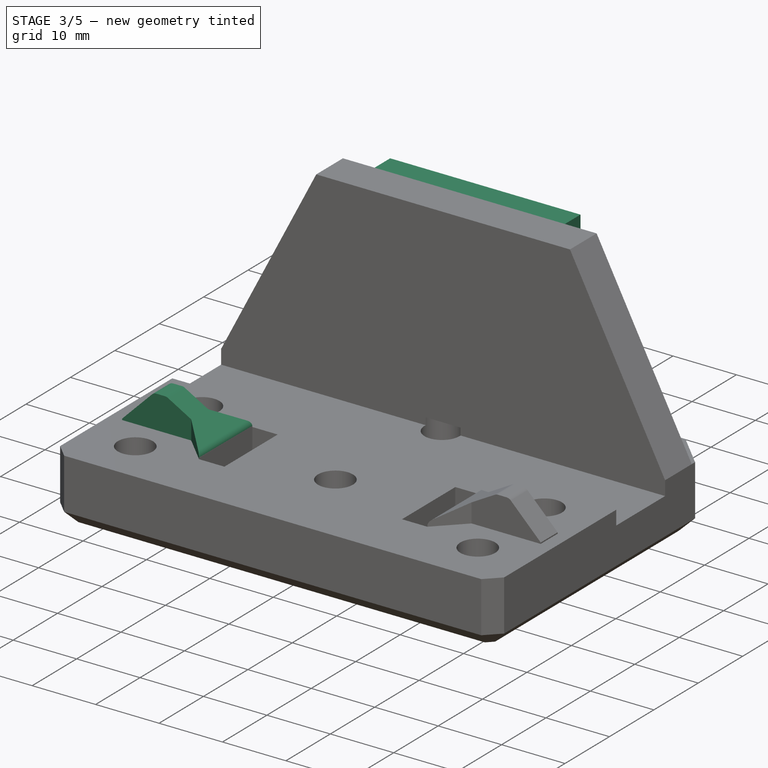
[diagram: stage 3 of 5 — iso view after this stage's code; geometry added in this stage tinted green]
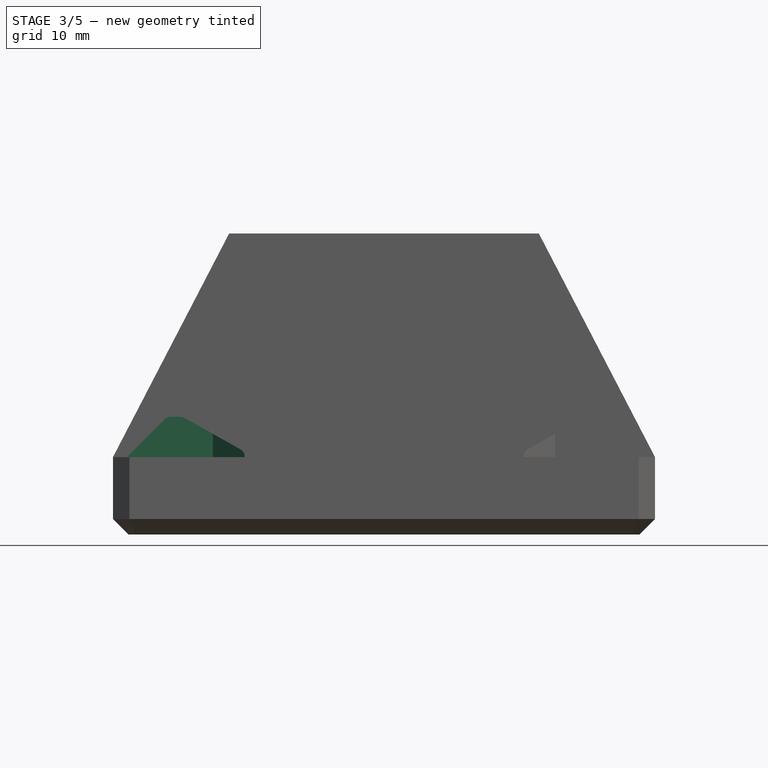
[diagram: stage 3 of 5 — front view after this stage's code; geometry added in this stage tinted green]
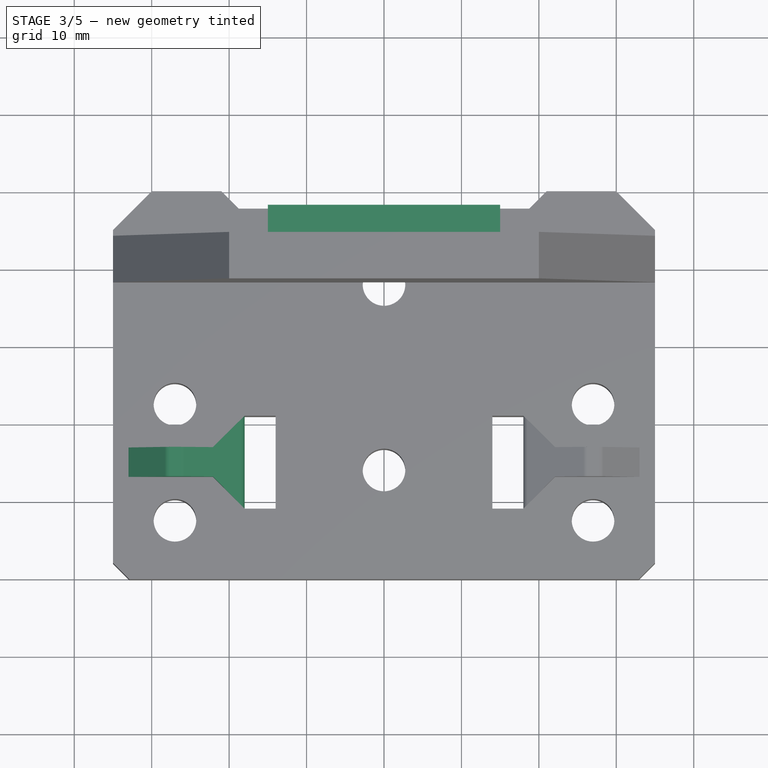
[diagram: stage 3 of 5 — top view after this stage's code; geometry added in this stage tinted green]
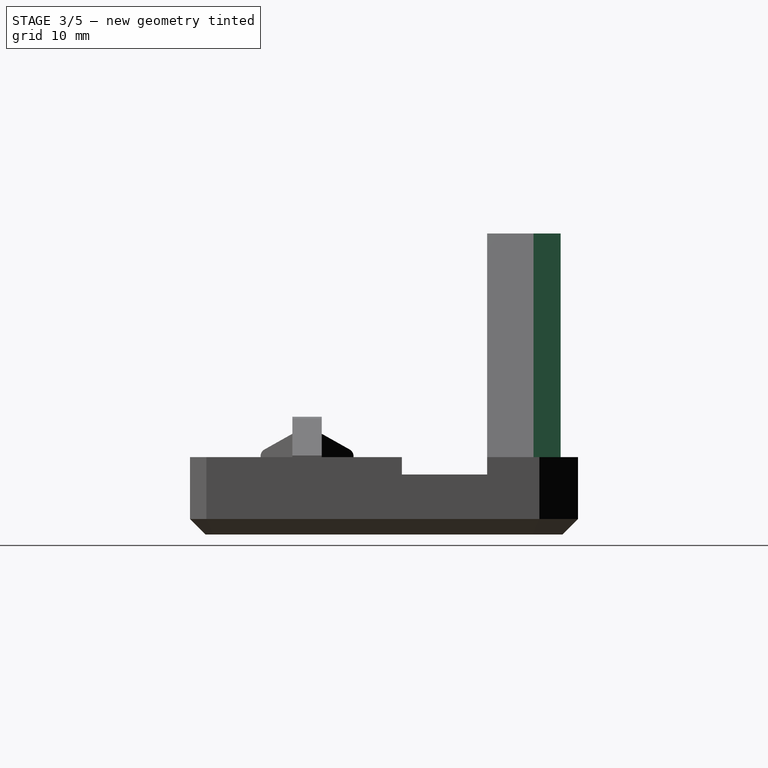
[diagram: stage 3 of 5 — right view after this stage's code; geometry added in this stage tinted green]
FEATURE [PartDesign::Fillet] Fillet  label="Belt standoff fillet"
  Base = -> Chamfer001 [Edge8,Edge13,Edge9]
  BaseFeature = -> Chamfer001
  Radius = 1
  SupportTransform = false
  UseAllEdges = false
FEATURE [PartDesign::Mirrored] Mirrored  label="Mirroring GT2 Belt Rest Pad"
  BaseFeature = -> Fillet
  MirrorPlane = -> YZ_Plane
  Originals = -> [Pad002,Chamfer,Chamfer001,Fillet]
FEATURE [PartDesign::Plane] DatumPlane004  label="Carriage bolt plane"
  AttachmentOffset = pos=(0,0,-9.5) rot=(0,0,1;0rad)
  Length = 60
  MapMode = 5
  Placement = pos=(0,-2.25,-2.1e-15) rot=(1,0,0;1.5708rad)
  ResizeMode = 0
  Support = -> [Pad003]
  Width = 60
FEATURE [Sketcher::SketchObject] Sketch010
  FullyConstrained = true
  MapMode = 5
  Placement = pos=(0,-2.25,-2.1e-15) rot=(1,0,0;1.5708rad)
  Support = -> [DatumPlane004]
  expr: Constraints[10] = <<Initial XY Profile>>.Length - <<Rail carriage cutout>>.Length / 2 + 3mm
  sketch-geometry (8):
    g0: LineSegment StartX=-10 StartY=31.875 StartZ=0 EndX=10 EndY=31.875 EndZ=0
    g1: LineSegment StartX=10 StartY=31.875 StartZ=0 EndX=10 EndY=11.875 EndZ=0
    g2: LineSegment StartX=10 StartY=11.875 StartZ=0 EndX=-10 EndY=11.875 EndZ=0
    g3: LineSegment StartX=-10 StartY=11.875 StartZ=0 EndX=-10 EndY=31.875 EndZ=0
    g4: Circle CenterX=-10 CenterY=31.875 CenterZ=0 NormalX=0 NormalY=0 NormalZ=1 AngleXU=0 Radius=3.25
    g5: Circle CenterX=-10 CenterY=11.875 CenterZ=0 NormalX=0 NormalY=0 NormalZ=1 AngleXU=0 Radius=3.25
    g6: Circle CenterX=10 CenterY=11.875 CenterZ=0 NormalX=0 NormalY=0 NormalZ=1 AngleXU=0 Radius=3.25
    g7: Circle CenterX=10 CenterY=31.875 CenterZ=0 NormalX=0 NormalY=0 NormalZ=1 AngleXU=0 Radius=3.25
  constraints (19):
    c: Coincident(g0,g1)
    c: Coincident(g1,g2)
    c: Coincident(g2,g3)
    c: Coincident(g3,g0)
    c: Horizontal(g2)
    c: Vertical(g1)
    c: Vertical(g3)
    c: DistanceX(g0,g0) = 20
    c: Equal(g0,g1)
    c: Symmetric(g0,g0,g-2)
    c: DistanceY(g-1,g2) = 11.875
    c: Coincident(g4,g0)
    c: Coincident(g5,g2)
    c: Coincident(g6,g1)
    c: Coincident(g7,g0)
    c: Equal(g7,g4)
    c: Equal(g5,g6)
    c: Equal(g5,g4)
    c: Diameter(g5) = 6.5
FEATURE [Sketcher::SketchObject] Sketch011
  FullyConstrained = true
  MapMode = 5
  Placement = pos=(1.6e-15,-11.75,8.875) rot=(0.57735,0.57735,0.57735;4.18879rad)
  Support = -> [DatumPlane003]
  sketch-geometry (4):
    g0: LineSegment StartX=0 StartY=15 StartZ=0 EndX=30 EndY=15 EndZ=0
    g1: LineSegment StartX=30 StartY=15 StartZ=0 EndX=30 EndY=-15 EndZ=0
    g2: LineSegment StartX=30 StartY=-15 StartZ=0 EndX=0 EndY=-15 EndZ=0
    g3: LineSegment StartX=0 StartY=-15 StartZ=0 EndX=0 EndY=15 EndZ=0
  constraints (11):
    c: Coincident(g0,g1)
    c: Coincident(g1,g2)
    c: Coincident(g2,g3)
    c: Coincident(g3,g0)
    c: Horizontal(g0)
    c: Horizontal(g2)
    c: Vertical(g1)
    c: PointOnObject(g0,g-2)
    c: Symmetric(g2,g0,g-1)
    c: DistanceY(g1,g1) = 30
    c: DistanceX(g0,g0) = 30
FEATURE [PartDesign::Pad] Pad004  label="X gantry support"
  BaseFeature = -> Mirrored
  Direction = (0,1,0)
  Length = 9.5
  Length2 = 10
  Profile = -> Sketch011
  ReferenceAxis = -> Sketch011 [N_Axis]
  Type = 0
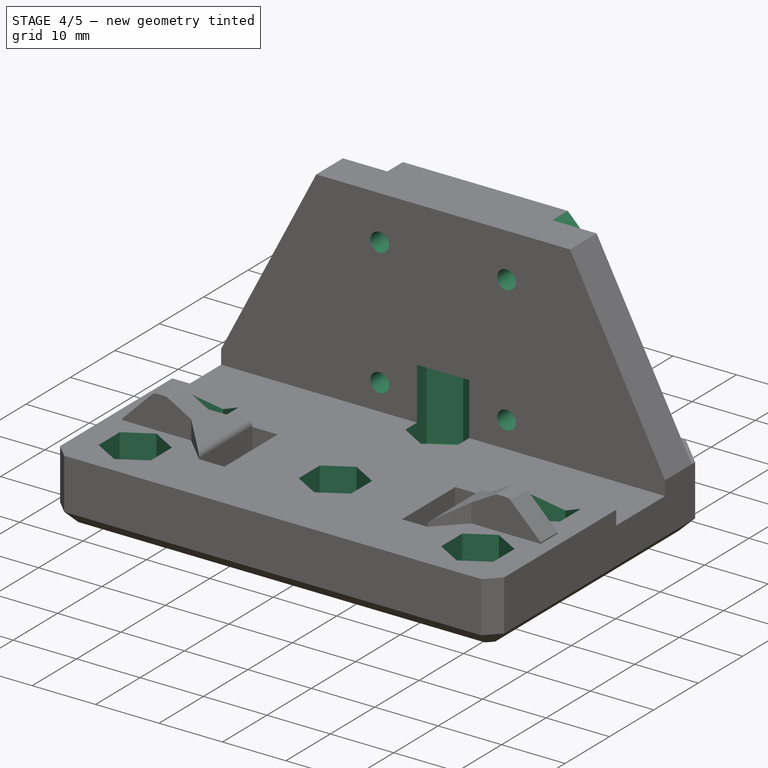
[diagram: stage 4 of 5 — iso view after this stage's code; geometry added in this stage tinted green]
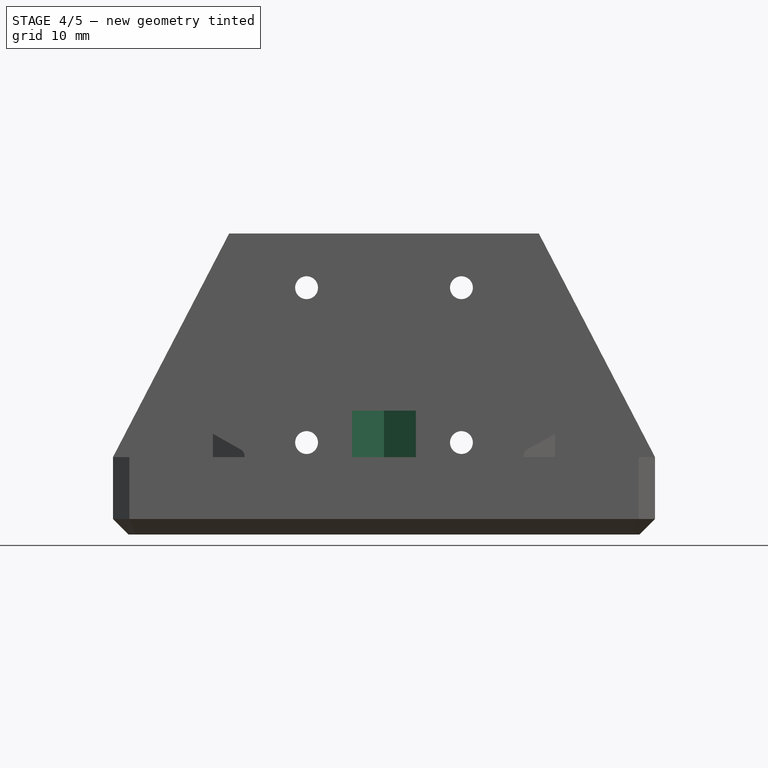
[diagram: stage 4 of 5 — front view after this stage's code; geometry added in this stage tinted green]
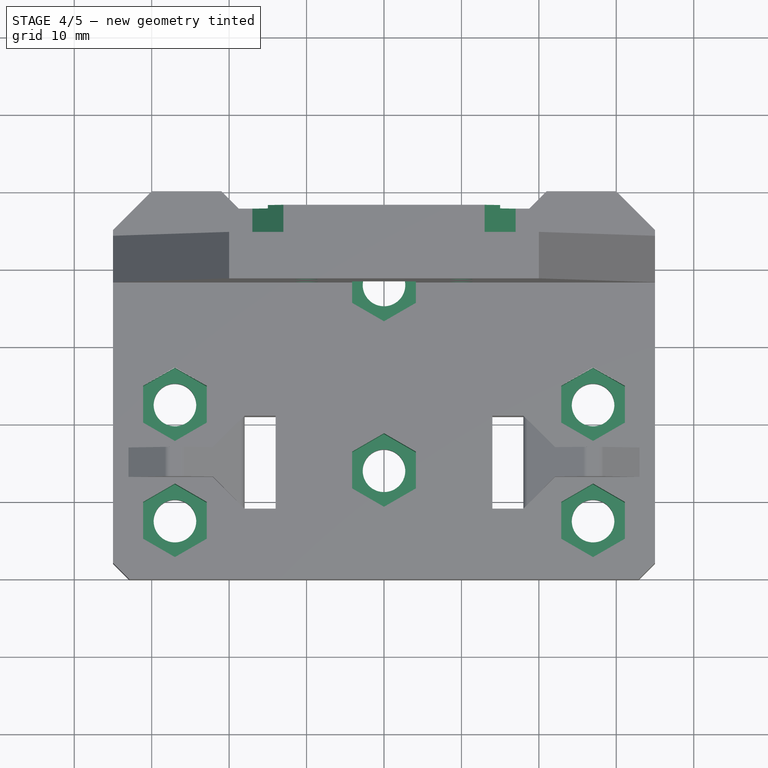
[diagram: stage 4 of 5 — top view after this stage's code; geometry added in this stage tinted green]
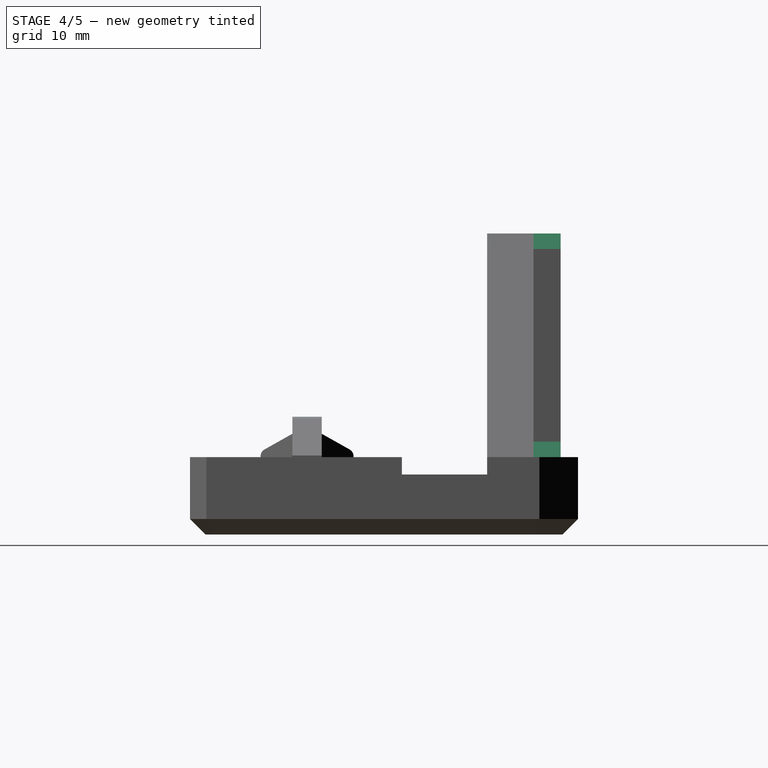
[diagram: stage 4 of 5 — right view after this stage's code; geometry added in this stage tinted green]
FEATURE [PartDesign::Pocket] Pocket  label="Hex Nut Pockets"
  BaseFeature = -> Pad004
  Direction = (0,0,-1)
  Length = 7
  Length2 = 5
  Midplane = true
  Profile = -> Sketch002
  ReferenceAxis = -> Sketch002 [N_Axis]
  Type = 4
FEATURE [PartDesign::Pocket] Pocket002  label="Carriage bolt heads"
  BaseFeature = -> Pocket
  Direction = (0,1,-2e-16)
  Length = 4
  Length2 = 5
  Profile = -> Sketch010
  ReferenceAxis = -> Sketch010 [N_Axis]
  Reversed = true
  Type = 0
FEATURE [Sketcher::SketchObject] Sketch012
  FullyConstrained = true
  MapMode = 5
  Placement = pos=(0,-2.25,-2.1e-15) rot=(1,0,0;1.5708rad)
  Support = -> [DatumPlane004]
  expr: Constraints[10] = <<Initial XY Profile>>.Length - <<Rail carriage cutout>>.Length / 2 + 3mm
  sketch-geometry (8):
    g0: LineSegment StartX=-10 StartY=31.875 StartZ=0 EndX=10 EndY=31.875 EndZ=0
    g1: LineSegment StartX=10 StartY=31.875 StartZ=0 EndX=10 EndY=11.875 EndZ=0
    g2: LineSegment StartX=10 StartY=11.875 StartZ=0 EndX=-10 EndY=11.875 EndZ=0
    g3: LineSegment StartX=-10 StartY=11.875 StartZ=0 EndX=-10 EndY=31.875 EndZ=0
    g4: Circle CenterX=-10 CenterY=31.875 CenterZ=0 NormalX=0 NormalY=0 NormalZ=1 AngleXU=0 Radius=1.475
    g5: Circle CenterX=-10 CenterY=11.875 CenterZ=0 NormalX=0 NormalY=0 NormalZ=1 AngleXU=0 Radius=1.475
    g6: Circle CenterX=10 CenterY=11.875 CenterZ=0 NormalX=0 NormalY=0 NormalZ=1 AngleXU=0 Radius=1.475
    g7: Circle CenterX=10 CenterY=31.875 CenterZ=0 NormalX=0 NormalY=0 NormalZ=1 AngleXU=0 Radius=1.475
  constraints (19):
    c: Coincident(g0,g1)
    c: Coincident(g1,g2)
    c: Coincident(g2,g3)
    c: Coincident(g3,g0)
    c: Horizontal(g2)
    c: Vertical(g1)
    c: Vertical(g3)
    c: DistanceX(g0,g0) = 20
    c: Equal(g0,g1)
    c: Symmetric(g0,g0,g-2)
    c: DistanceY(g-1,g2) = 11.875
    c: Coincident(g4,g0)
    c: Coincident(g5,g2)
    c: Coincident(g6,g1)
    c: Coincident(g7,g0)
    c: Equal(g7,g4)
    c: Equal(g5,g6)
    c: Equal(g5,g4)
    c: Diameter(g5) = 2.95
FEATURE [PartDesign::Pocket] Pocket003  label="Carriage bolt holes"
  BaseFeature = -> Pocket002
  Direction = (0,1,-2e-16)
  Length = 5
  Length2 = 5
  Profile = -> Sketch012
  ReferenceAxis = -> Sketch012 [N_Axis]
  Reversed = true
  Type = 1
FEATURE [PartDesign::Chamfer] Chamfer005  label="Carriage shelf chamfers"
  Angle = 45
  Base = -> Pocket003 [Edge340,Edge329,Edge258,Edge241]
  BaseFeature = -> Pocket003
  ChamferType = 0
  FlipDirection = false
  Size = 2
  Size2 = 1
  SupportTransform = false
  UseAllEdges = false
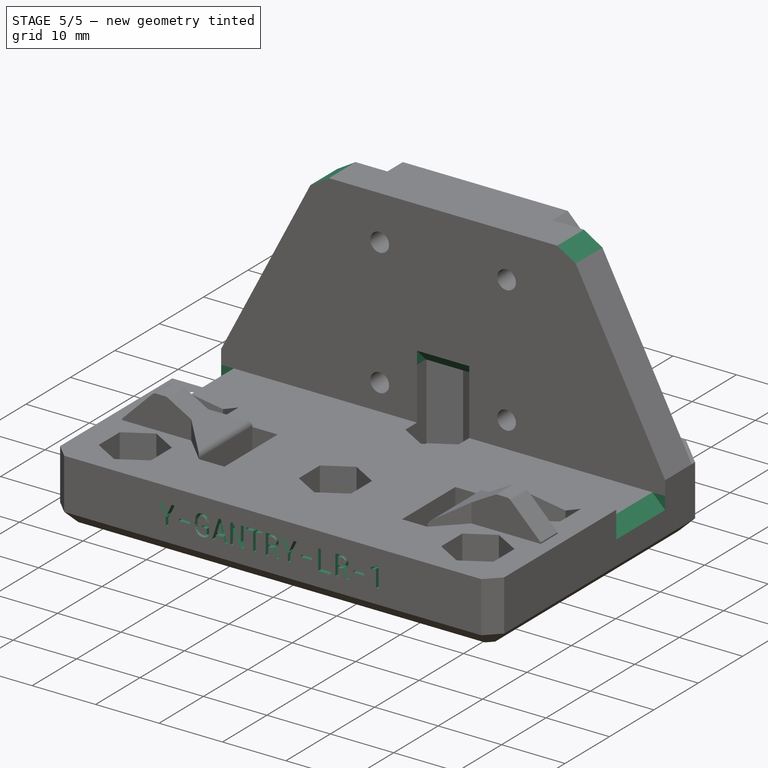
[diagram: stage 5 of 5 — iso view after this stage's code; geometry added in this stage tinted green]
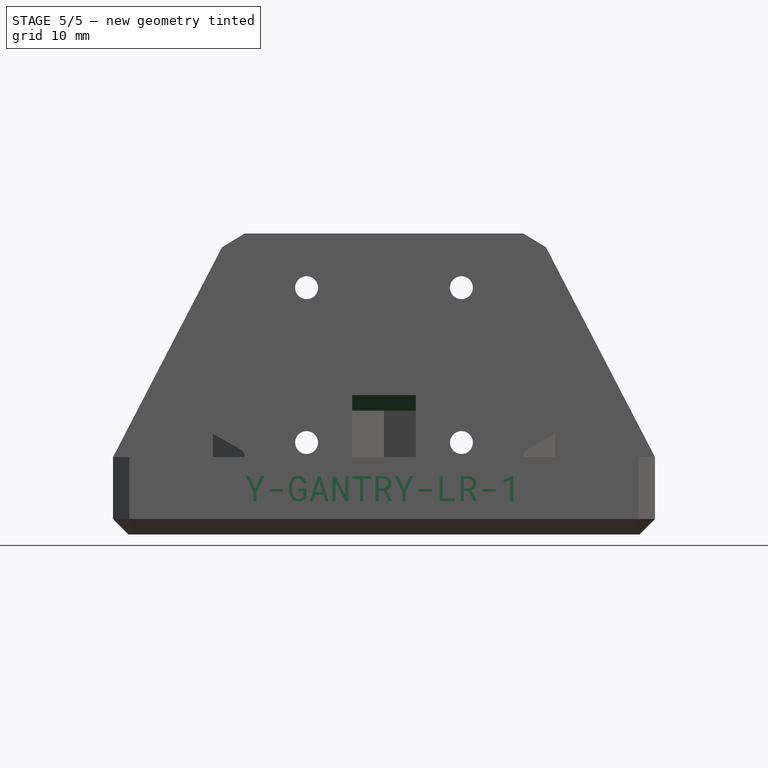
[diagram: stage 5 of 5 — front view after this stage's code; geometry added in this stage tinted green]
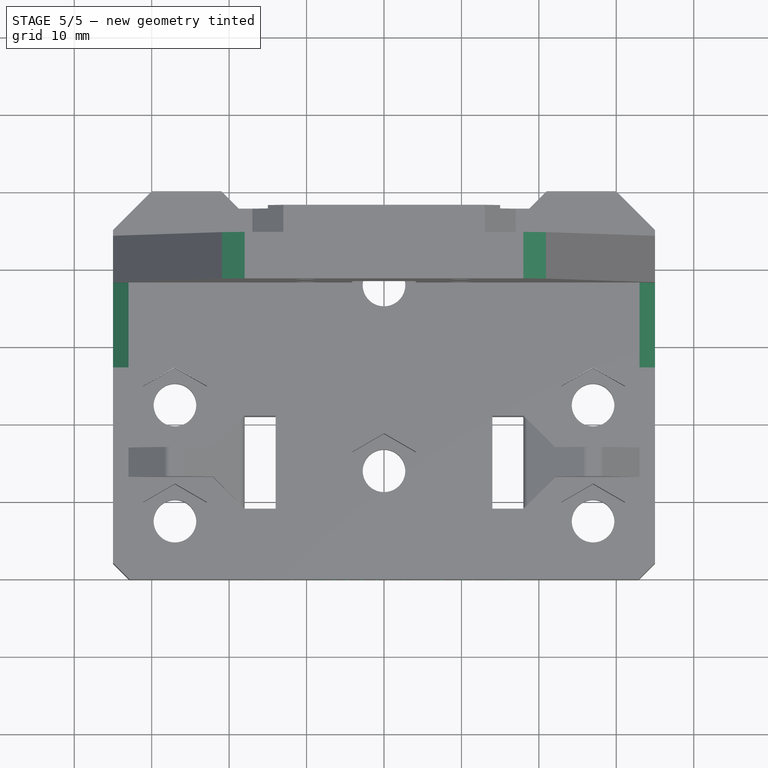
[diagram: stage 5 of 5 — top view after this stage's code; geometry added in this stage tinted green]
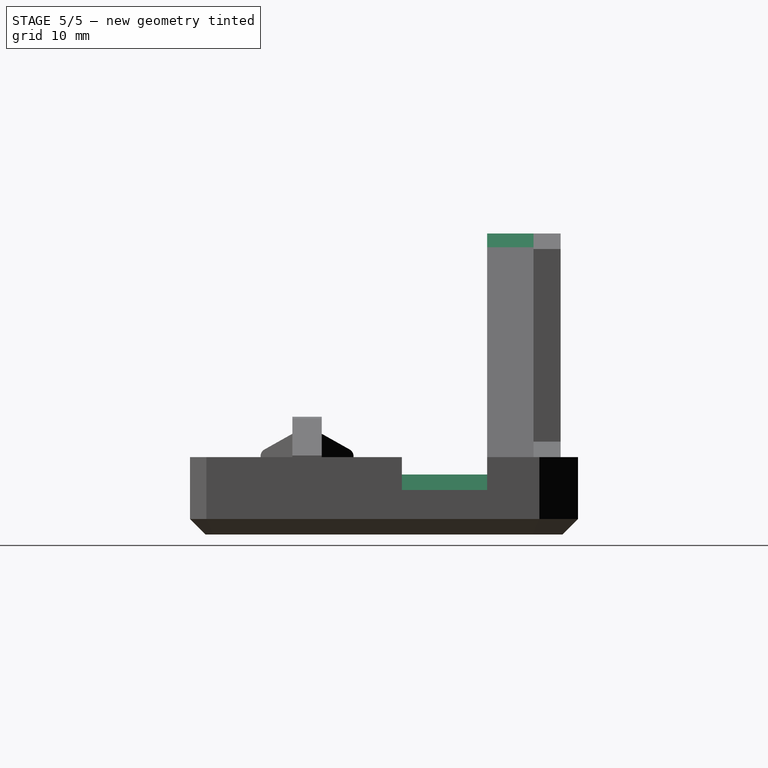
[diagram: stage 5 of 5 — right view after this stage's code; geometry added in this stage tinted green]
FEATURE [PartDesign::Chamfer] Chamfer006  label="Carriage cutout chamfers"
  Angle = 45
  Base = -> Chamfer005 [Edge37,Edge160]
  BaseFeature = -> Chamfer005
  ChamferType = 0
  FlipDirection = false
  Size = 2
  Size2 = 1
  SupportTransform = false
  UseAllEdges = false
FEATURE [PartDesign::Chamfer] Chamfer007  label="M5 nut pocket chamfer"
  Angle = 45
  Base = -> Chamfer006 [Edge348]
  BaseFeature = -> Chamfer006
  ChamferType = 0
  FlipDirection = false
  Size = 2
  Size2 = 1
  SupportTransform = false
  UseAllEdges = false
FEATURE [PartDesign::Plane] DatumPlane005  label="Part number plane"
  Length = 60
  MapMode = 5
  Placement = pos=(0,-50.1213,0) rot=(1,0,0;1.5708rad)
  ResizeMode = 0
  Support = -> [Pad]
  Width = 60
FEATURE [Part::Part2DObjectPython] ShapeString  # Draft 2D object (typed FeaturePython)
  AttachmentOffset = pos=(-18,4.3,0) rot=(0,0,1;0rad)
  FontFile = <userpath>/workspace/opulo-inc/lumenpnp/lib/fonts/RobotoMono-VariableFont_weight.ttf
  MakeFace = true
  MapMode = 5
  Placement = pos=(-18,-50.1213,4.3) rot=(1,0,0;1.5708rad)
  Size = 4
  String = Y-GANTRY-LR-1
  Support = -> [DatumPlane005]
  Tracking = 0
FEATURE [PartDesign::Chamfer] Chamfer008  label="Carriage shelf chamfers 2"
  Angle = 45
  Base = -> Chamfer007 [Edge105,Edge110]
  BaseFeature = -> Chamfer007
  ChamferType = 0
  FlipDirection = false
  Size = 2
  Size2 = 1
  SupportTransform = false
  UseAllEdges = false
FEATURE [PartDesign::Pocket] Pocket004  label="Part number"
  BaseFeature = -> Chamfer008
  Direction = (0,1,-2e-16)
  Length = 1
  Length2 = 5
  Profile = -> ShapeString
  ReferenceAxis = -> ShapeString [N_Axis]
  Type = 0
FEATURE [PartDesign::Body] Body
  Group = -> [Sketch,Pad,DatumPlane005,Chamfer004,DatumPlane002,DatumPlane,Pocket001,DatumPlane003,Pad003,DatumPlane004,Fillet001,Sketch002,Sketch007,Pad002,Chamfer,Chamfer001,Fillet,Mirrored,Sketch008,Sketch009,Sketch012,Sketch010,Sketch011,Pad004,Pocket,Pocket002,Pocket003,Chamfer005,Chamfer006,Chamfer007,ShapeString,Chamfer008,Pocket004]
  Origin = -> Origin
  Tip = -> Pocket004
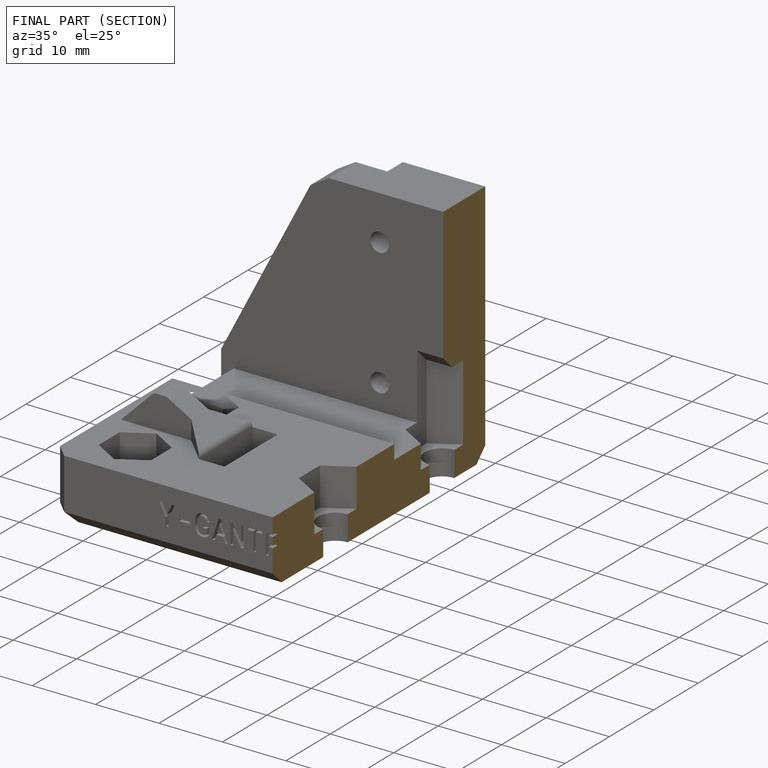
[diagram: finished part — half-section view (interior)]
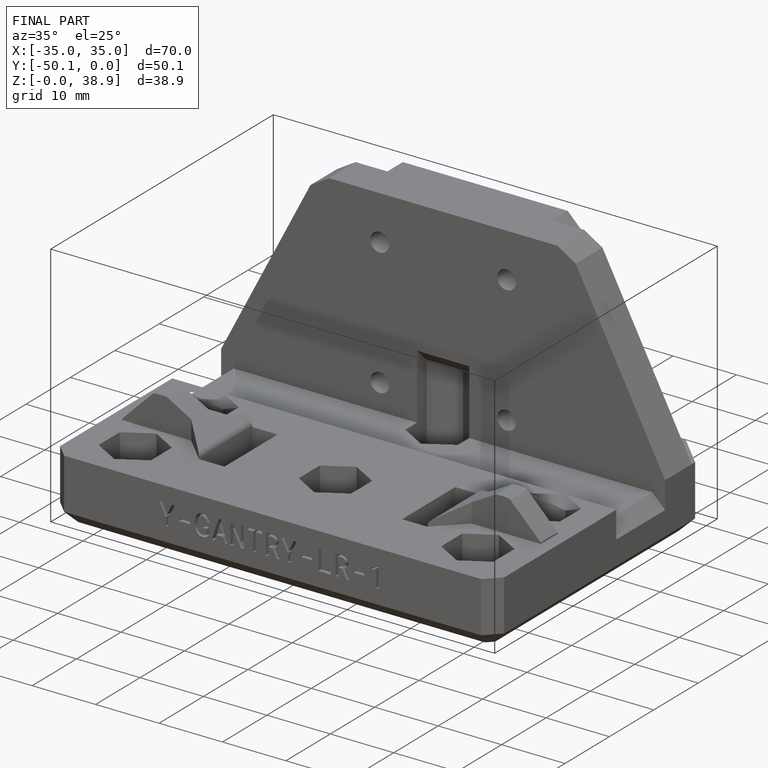
[diagram: finished part — iso view with bounding-box wireframe]
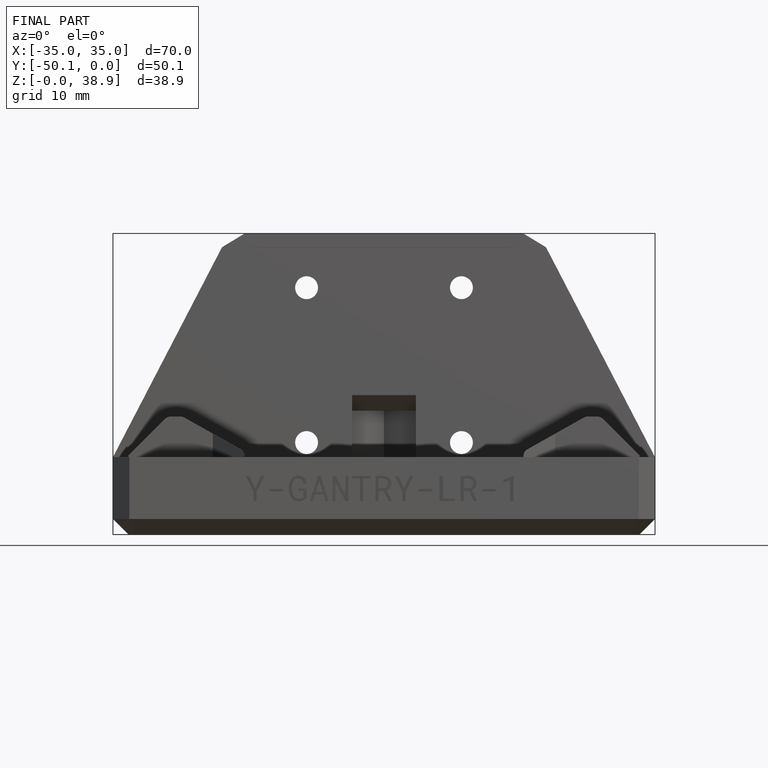
[diagram: finished part — front view with bounding-box wireframe]
